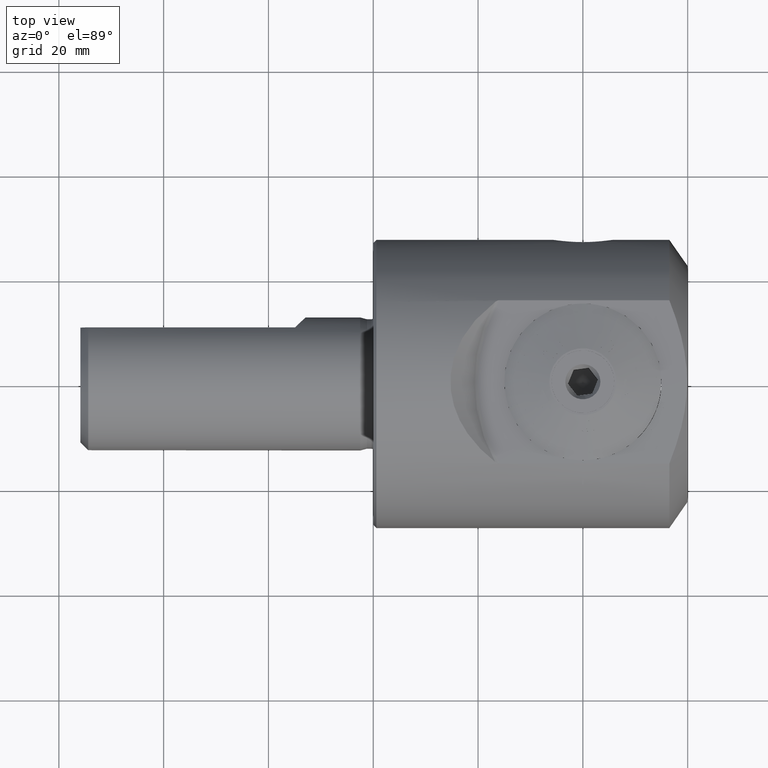
[diagram: clean part render]
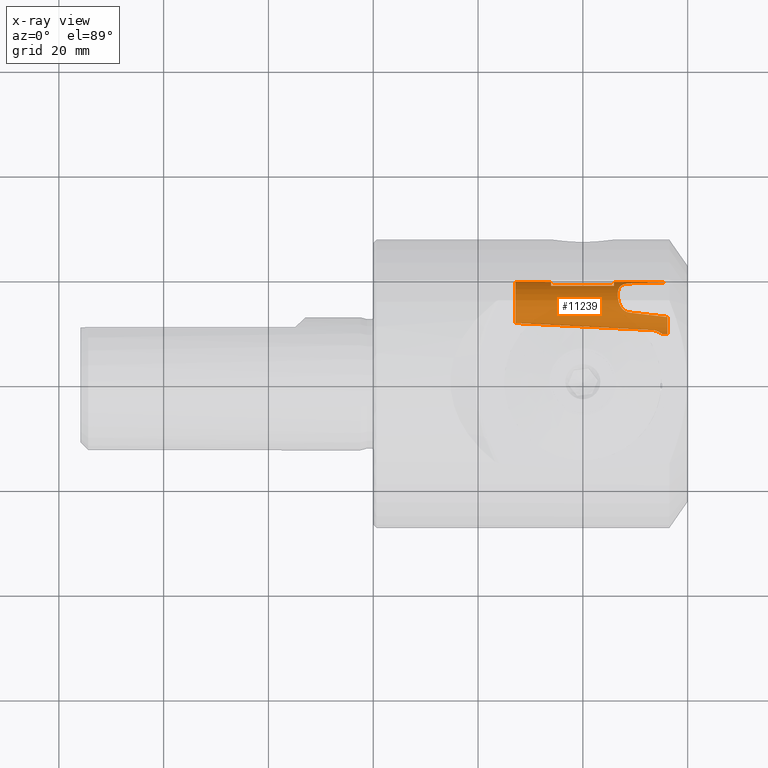
[diagram: x-ray — body ghosted, one internal face saturated and labeled with its STEP entity id]
A machine part, top view, then the same camera in x-ray: the body is ghosted and one INTERNAL B-rep face — a face not visible from any outside direction — is saturated and labeled: STEP entity #11239.
In plain terms, the highlighted cylindrical surface (bore or boss wall) has radius 4.975 mm, axis along (1, 0, -0).
Its self-contained STEP definition (entity closure, byte-faithful):
#60 = CARTESIAN_POINT ( 'NONE',  ( -23.75616264005797600, 0.9711936959612594800, -4.879283533975561600 ) ) ;
#329 = CARTESIAN_POINT ( 'NONE',  ( -23.75616264005797600, 0.9711936959612560400, 4.879283533975560700 ) ) ;
#379 = AXIS2_PLACEMENT_3D ( 'NONE', #25001, #12374, #23057 ) ;
#413 = CARTESIAN_POINT ( 'NONE',  ( -28.04702041557785500, 4.175981429081590000, 2.704034782314310700 ) ) ;
#569 = CARTESIAN_POINT ( 'NONE',  ( -23.75616264005797600, 0.9711936959612594800, -4.879283533975561600 ) ) ;
#603 = CARTESIAN_POINT ( 'NONE',  ( -21.81273115930526200, -0.7140002617331654400, 4.926844232489567200 ) ) ;
#773 = CARTESIAN_POINT ( 'NONE',  ( -37.35767266981326900, -4.174999999999990900, 2.705549851693736000 ) ) ;
#927 = ORIENTED_EDGE ( 'NONE', *, *, #6784, .T. ) ;
#1032 = CIRCLE ( 'NONE', #25133, 4.974999999999991700 ) ;
#1157 = CARTESIAN_POINT ( 'NONE',  ( -28.35949422831775400, 4.204222738295940500, 2.660504903129094200 ) ) ;
#1252 = CARTESIAN_POINT ( 'NONE',  ( -29.17404201039428100, 4.442811831501246400, -2.241886829458144000 ) ) ;
#1380 = CARTESIAN_POINT ( 'NONE',  ( -22.85343681962985600, -4.596819367566275200, -1.906257305762205600 ) ) ;
#1474 = CARTESIAN_POINT ( 'NONE',  ( -22.41101902823778900, -4.441022011835181100, -2.247365920600072500 ) ) ;
#1727 = CARTESIAN_POINT ( 'NONE',  ( -31.00000000000000000, 1.812363584637119100, -4.633137515451188000 ) ) ;
#1919 = CARTESIAN_POINT ( 'NONE',  ( -22.85096820679456900, 0.6458913709162358300, -4.934303833800350400 ) ) ;
#2008 = CARTESIAN_POINT ( 'NONE',  ( -21.54349514667245900, -3.122258275151887900, -3.878029846838730000 ) ) ;
#2212 = CIRCLE ( 'NONE', #13538, 4.974999999999993400 ) ;
#2259 = CARTESIAN_POINT ( 'NONE',  ( -23.75616264005797600, -4.711180340670591000, -1.598563354289988600 ) ) ;
#2377 = CARTESIAN_POINT ( 'NONE',  ( -22.41101902823778900, -4.441022011835181100, 2.247365920600072500 ) ) ;
#2414 = AXIS2_PLACEMENT_3D ( 'NONE', #13935, #7437, #9243 ) ;
#2478 = CARTESIAN_POINT ( 'NONE',  ( -28.04702041557785500, 4.175981429081590000, -2.704034782314313400 ) ) ;
#2516 = EDGE_CURVE ( 'NONE', #25354, #7135, #21500, .T. ) ;
#2656 = CARTESIAN_POINT ( 'NONE',  ( -21.69239270141726900, -3.674352406732378300, 3.359062020855605000 ) ) ;
#2756 = ORIENTED_EDGE ( 'NONE', *, *, #26556, .T. ) ;
#2814 = ORIENTED_EDGE ( 'NONE', *, *, #15830, .T. ) ;
#3128 = CARTESIAN_POINT ( 'NONE',  ( -31.00000000000000000, -4.918596579926013800, -0.7470158525359751300 ) ) ;
#3315 = CARTESIAN_POINT ( 'NONE',  ( -25.96393487807307900, -4.805297045443680300, -1.321188817919111400 ) ) ;
#3322 = CARTESIAN_POINT ( 'NONE',  ( -29.95718939767529700, 4.937687269155614600, 0.6280495243557379100 ) ) ;
#3361 =( BOUNDED_CURVE ( )  B_SPLINE_CURVE ( 3, ( #3128, #9473, #3315, #26899 ),
 .UNSPECIFIED., .F., .T. ) 
 B_SPLINE_CURVE_WITH_KNOTS ( ( 4, 4 ),
 ( 2.245119078828732300, 2.421517405369339600 ),
 .UNSPECIFIED. ) 
 CURVE ( )  GEOMETRIC_REPRESENTATION_ITEM ( )  RATIONAL_B_SPLINE_CURVE ( ( 1.000000000000000000, 0.9974086497158403100, 0.9974086497158403100, 1.000000000000000000 ) ) 
 REPRESENTATION_ITEM ( '' )  );
#3610 = ORIENTED_EDGE ( 'NONE', *, *, #26317, .T. ) ;
#3794 = ORIENTED_EDGE ( 'NONE', *, *, #10431, .F. ) ;
#4018 = CARTESIAN_POINT ( 'NONE',  ( -21.88634546307127900, -0.5351768258960275500, -4.949127718726362700 ) ) ;
#4160 = CIRCLE ( 'NONE', #25289, 4.974999999999995200 ) ;
#4382 = CARTESIAN_POINT ( 'NONE',  ( -21.64535866357411500, -1.251328301372853800, -4.818749861947051900 ) ) ;
#4435 = CARTESIAN_POINT ( 'NONE',  ( -8.800000000000002500, -4.174999999999990900, 2.705549851693735500 ) ) ;
#4458 = CARTESIAN_POINT ( 'NONE',  ( -8.800000000000002500, -4.174999999999990900, -2.705549851693735500 ) ) ;
#4552 = CARTESIAN_POINT ( 'NONE',  ( -21.88663810129824900, -4.018931799033475200, 2.937452126306506500 ) ) ;
#4680 = ORIENTED_EDGE ( 'NONE', *, *, #26388, .F. ) ;
#4756 = CARTESIAN_POINT ( 'NONE',  ( -23.02246505020508500, -4.633603653841064800, 1.812741651946556000 ) ) ;
#4849 = CARTESIAN_POINT ( 'NONE',  ( -21.54349514667245900, -3.122258275151887900, 3.878029846838730000 ) ) ;
#5036 = ORIENTED_EDGE ( 'NONE', *, *, #18693, .T. ) ;
#5497 = CARTESIAN_POINT ( 'NONE',  ( -30.00006131395096900, 4.975054249201298800, 0.1567646807689248600 ) ) ;
#5563 = VERTEX_POINT ( 'NONE', #15251 ) ;
#5576 = CARTESIAN_POINT ( 'NONE',  ( -23.75616264005797600, 0.9711936959612560400, 4.879283533975560700 ) ) ;
#5586 = CARTESIAN_POINT ( 'NONE',  ( -28.79815339571129900, 4.303275072072571200, -2.498159080227027500 ) ) ;
#5657 = EDGE_CURVE ( 'NONE', #5563, #19181, #15980, .T. ) ;
#5770 = CARTESIAN_POINT ( 'NONE',  ( -28.04702041557785500, 4.175981429081590000, -2.704034782314313400 ) ) ;
#5817 = CARTESIAN_POINT ( 'NONE',  ( -22.06561509288833300, -4.212912498745185800, -2.651755282363300400 ) ) ;
#5892 = DIRECTION ( 'NONE',  ( 0.0000000000000000000, 5.310751821647804000E-032, -1.000000000000000000 ) ) ;
#6148 = ORIENTED_EDGE ( 'NONE', *, *, #5657, .T. ) ;
#6259 = CARTESIAN_POINT ( 'NONE',  ( -21.57095747875063200, -1.612454405559408800, 4.710219054335314400 ) ) ;
#6285 = CARTESIAN_POINT ( 'NONE',  ( -21.50011477217534100, -2.317699780142878900, -4.406338544676592600 ) ) ;
#6299 = DIRECTION ( 'NONE',  ( -1.000000000000000000, 4.390622260158178900E-033, -3.574525976782709700E-031 ) ) ;
#6323 = EDGE_LOOP ( 'NONE', ( #2814, #9338, #25416, #6148 ) ) ;
#6386 = ORIENTED_EDGE ( 'NONE', *, *, #11014, .F. ) ;
#6543 = CARTESIAN_POINT ( 'NONE',  ( -20.80000000000000100, -4.174999999999990900, 2.705549851693734600 ) ) ;
#6562 = CARTESIAN_POINT ( 'NONE',  ( -21.69264845615322200, -1.071235467195228200, -4.861691582031276900 ) ) ;
#6622 = ORIENTED_EDGE ( 'NONE', *, *, #15405, .T. ) ;
#6722 =( BOUNDED_CURVE ( )  B_SPLINE_CURVE ( 3, ( #7608, #20913, #14560, #1727 ),
 .UNSPECIFIED., .F., .F. ) 
 B_SPLINE_CURVE_WITH_KNOTS ( ( 4, 4 ),
 ( 3.861667901810247500, 4.038066228350853500 ),
 .UNSPECIFIED. ) 
 CURVE ( )  GEOMETRIC_REPRESENTATION_ITEM ( )  RATIONAL_B_SPLINE_CURVE ( ( 1.000000000000000000, 0.9974086497158403100, 0.9974086497158403100, 1.000000000000000000 ) ) 
 REPRESENTATION_ITEM ( '' )  );
#6735 = CARTESIAN_POINT ( 'NONE',  ( -21.50837444099488500, -2.813558591817865800, 4.107493186864018300 ) ) ;
#6784 = EDGE_CURVE ( 'NONE', #25354, #16844, #3361, .T. ) ;
#6836 = CARTESIAN_POINT ( 'NONE',  ( -22.06466569340828300, -0.1916879100465490600, 4.974287401868105400 ) ) ;
#6927 = CARTESIAN_POINT ( 'NONE',  ( -23.37745697600762500, -4.686431972548828800, 1.671427678442383200 ) ) ;
#7135 = VERTEX_POINT ( 'NONE', #25460 ) ;
#7233 = DIRECTION ( 'NONE',  ( -1.000000000000000000, 4.390622260158179500E-033, -3.574525976782709700E-031 ) ) ;
#7437 = DIRECTION ( 'NONE',  ( -1.000000000000000000, 4.390622260158178200E-033, -3.574525976782709700E-031 ) ) ;
#7503 = B_SPLINE_CURVE_WITH_KNOTS ( 'NONE', 3,
 ( #9857, #14079, #1157, #27177, #18354, #20794, #16235, #20518, #7682, #22888, #12015, #25101, #3322, #22615, #5497, #24833, #16509, #26987, #18536, #14165, #14351, #1252, #7869, #5586, #16325, #10049, #20611, #5770 ),
 .UNSPECIFIED., .F., .F.,
 ( 4, 2, 2, 2, 2, 2, 2, 2, 2, 2, 2, 2, 2, 4 ),
 ( 0.0000000000000000000, 0.0004717440663715149600, 0.0009434881327430299200, 0.001415232199114544700, 0.001886976265486059800, 0.002830464398229090700, 0.003302208464600606300, 0.003773952530972121400, 0.004717440663715151200, 0.005660928796458180600, 0.006132672862829696200, 0.006604416929201210900, 0.007076160995572726400, 0.007547905061944241100 ),
 .UNSPECIFIED. ) ;
#7534 = EDGE_CURVE ( 'NONE', #19755, #5563, #20768, .T. ) ;
#7581 = CARTESIAN_POINT ( 'NONE',  ( -23.75616264005797600, -4.711180340670591000, 1.598563354289989100 ) ) ;
#7608 = CARTESIAN_POINT ( 'NONE',  ( -23.75616264005797600, 0.9711936959612594800, -4.879283533975561600 ) ) ;
#7682 = CARTESIAN_POINT ( 'NONE',  ( -29.47367893246690000, 4.595344360789214400, 1.911089644568778200 ) ) ;
#7711 = FACE_BOUND ( 'NONE', #6323, .T. ) ;
#7869 = CARTESIAN_POINT ( 'NONE',  ( -29.05475172217763100, 4.392112146467247200, -2.338445216141870700 ) ) ;
#7945 = CARTESIAN_POINT ( 'NONE',  ( -31.00000000000000000, -4.918596579926013800, 0.7470158525359751300 ) ) ;
#8295 = CARTESIAN_POINT ( 'NONE',  ( -23.75616264005797600, -4.711180340670591000, -1.598563354289988600 ) ) ;
#8388 = CARTESIAN_POINT ( 'NONE',  ( -23.56226435454252100, 0.9459639651452662600, -4.884305368707790900 ) ) ;
#8451 = CARTESIAN_POINT ( 'NONE',  ( -21.50865810232666300, -2.146443158344295100, 4.492229735969411700 ) ) ;
#8818 = CARTESIAN_POINT ( 'NONE',  ( -12.39955657635416000, 3.355932597856295300, 3.731578715431219400 ) ) ;
#8906 = CARTESIAN_POINT ( 'NONE',  ( -22.85096820679456900, 0.6458913709162358300, 4.934303833800350400 ) ) ;
#9014 =( BOUNDED_CURVE ( )  B_SPLINE_CURVE ( 3, ( #5576, #20602, #9757, #26803 ),
 .UNSPECIFIED., .F., .T. ) 
 B_SPLINE_CURVE_WITH_KNOTS ( ( 4, 4 ),
 ( 3.861667901810247100, 4.038066228350853500 ),
 .UNSPECIFIED. ) 
 CURVE ( )  GEOMETRIC_REPRESENTATION_ITEM ( )  RATIONAL_B_SPLINE_CURVE ( ( 1.000000000000000000, 0.9974086497158403100, 0.9974086497158403100, 1.000000000000000000 ) ) 
 REPRESENTATION_ITEM ( '' )  );
#9107 = CARTESIAN_POINT ( 'NONE',  ( -21.81361238804723300, -3.911374035951867600, 3.079824089083036800 ) ) ;
#9210 = CARTESIAN_POINT ( 'NONE',  ( -21.49988748655810500, -2.650683389746759200, 4.214431065813943000 ) ) ;
#9243 = DIRECTION ( 'NONE',  ( 0.0000000000000000000, -5.310751821647804000E-032, 1.000000000000000000 ) ) ;
#9338 = ORIENTED_EDGE ( 'NONE', *, *, #19584, .T. ) ;
#9385 = VECTOR ( 'NONE', #7233, 1000.000000000000000 ) ;
#9473 = CARTESIAN_POINT ( 'NONE',  ( -28.38482069453549500, -4.874615420051892300, -1.036602187020927000 ) ) ;
#9545 = DIRECTION ( 'NONE',  ( 1.000000000000000000, -4.390622260158179500E-033, 3.574525976782709700E-031 ) ) ;
#9757 = CARTESIAN_POINT ( 'NONE',  ( -28.38482069453547800, 1.539583882447266100, 4.739841880954768000 ) ) ;
#9857 = CARTESIAN_POINT ( 'NONE',  ( -28.04702041557785500, 4.175981429081590000, 2.704034782314310700 ) ) ;
#9885 = VERTEX_POINT ( 'NONE', #24411 ) ;
#10049 = CARTESIAN_POINT ( 'NONE',  ( -28.36232358724183600, 4.204578289626972800, -2.659964332718100600 ) ) ;
#10124 = CARTESIAN_POINT ( 'NONE',  ( -28.38482069453549500, -4.874615420051892300, 1.036602187020927000 ) ) ;
#10344 = CARTESIAN_POINT ( 'NONE',  ( -8.800000000000002500, 0.0000000000000000000, -3.037114485100895500E-030 ) ) ;
#10431 = EDGE_CURVE ( 'NONE', #26157, #14730, #1032, .T. ) ;
#10448 = CARTESIAN_POINT ( 'NONE',  ( -23.02246505020508500, -4.633603653841064800, -1.812741651946556000 ) ) ;
#10768 = EDGE_CURVE ( 'NONE', #26202, #25310, #23970, .T. ) ;
#10824 = CARTESIAN_POINT ( 'NONE',  ( -23.37594249840031300, 0.8954007444527973800, -4.894355982542507800 ) ) ;
#11014 = EDGE_CURVE ( 'NONE', #27033, #26157, #9014, .T. ) ;
#11017 = CARTESIAN_POINT ( 'NONE',  ( -12.39955657635414400, 3.355932597856294400, -3.731578715431219900 ) ) ;
#11108 = CARTESIAN_POINT ( 'NONE',  ( -23.01788439896217000, 0.7446776661578703400, 4.919544506409301300 ) ) ;
#11222 = VERTEX_POINT ( 'NONE', #20689 ) ;
#11239 = ADVANCED_FACE ( 'NONE', ( #7711, #27156, #25802 ), #19399, .T. ) ;
#11383 = CARTESIAN_POINT ( 'NONE',  ( -23.75616264005797600, -4.711180340670591000, 1.598563354289989100 ) ) ;
#11430 = CARTESIAN_POINT ( 'NONE',  ( -31.00000000000000000, 1.812363584637119100, -4.633137515451188000 ) ) ;
#12015 = CARTESIAN_POINT ( 'NONE',  ( -29.82403536976303100, 4.828477307129699800, 1.237775062639390900 ) ) ;
#12231 = CARTESIAN_POINT ( 'NONE',  ( -23.37745697600762500, -4.686431972548828800, -1.671427678442383200 ) ) ;
#12374 = DIRECTION ( 'NONE',  ( -1.000000000000000000, 4.390622260158178900E-033, -3.574525976782709700E-031 ) ) ;
#12419 = ORIENTED_EDGE ( 'NONE', *, *, #12587, .F. ) ;
#12587 = EDGE_CURVE ( 'NONE', #7135, #25011, #24765, .T. ) ;
#12620 = CARTESIAN_POINT ( 'NONE',  ( -21.50837444099488500, -2.813558591817865800, -4.107493186864018300 ) ) ;
#12743 = DIRECTION ( 'NONE',  ( -1.000000000000000000, 4.390622260158178900E-033, -3.574525976782709700E-031 ) ) ;
#12777 = CARTESIAN_POINT ( 'NONE',  ( -22.16946527986219800, -4.296870477301586000, 2.512017952159833800 ) ) ;
#12800 = CARTESIAN_POINT ( 'NONE',  ( -21.49988748655810500, -2.650683389746759200, -4.214431065813943000 ) ) ;
#12883 = CARTESIAN_POINT ( 'NONE',  ( -22.06466569340828300, -0.1916879100465490600, -4.974287401868105400 ) ) ;
#12972 = CARTESIAN_POINT ( 'NONE',  ( -22.54837089765234400, 0.4113877607279218800, -4.959363880338300700 ) ) ;
#13240 = CARTESIAN_POINT ( 'NONE',  ( -23.56226435454252100, 0.9459639651452662600, 4.884305368707790900 ) ) ;
#13244 = EDGE_LOOP ( 'NONE', ( #6622, #27100, #2756, #5036 ) ) ;
#13521 = CARTESIAN_POINT ( 'NONE',  ( -21.64535866357411500, -1.251328301372853800, 4.818749861947051900 ) ) ;
#13538 = AXIS2_PLACEMENT_3D ( 'NONE', #10344, #14760, #5892 ) ;
#13630 =( BOUNDED_CURVE ( )  B_SPLINE_CURVE ( 3, ( #2478, #15905, #11017, #15314 ),
 .UNSPECIFIED., .F., .F. ) 
 B_SPLINE_CURVE_WITH_KNOTS ( ( 4, 4 ),
 ( 0.5746303896222408900, 0.9703533450840773300 ),
 .UNSPECIFIED. ) 
 CURVE ( )  GEOMETRIC_REPRESENTATION_ITEM ( )  RATIONAL_B_SPLINE_CURVE ( ( 1.000000000000000000, 0.9869927968320930700, 0.9869927968320930700, 1.000000000000000000 ) ) 
 REPRESENTATION_ITEM ( '' )  );
#13635 = B_SPLINE_CURVE_WITH_KNOTS ( 'NONE', 3,
 ( #11383, #15497, #6927, #4756, #19768, #15594, #2377, #12777, #21947, #4552, #9107, #2656, #19569, #24108, #4849, #6735, #9210, #24200, #8451, #26335, #6259, #13521, #15693, #603, #16981, #6836, #23435, #24012, #21761, #8906, #11108, #26055, #13240, #329 ),
 .UNSPECIFIED., .F., .F.,
 ( 4, 2, 2, 2, 2, 2, 2, 2, 2, 2, 2, 2, 2, 2, 2, 2, 4 ),
 ( 2.168404344971008900E-019, 0.0005761594176274573800, 0.001152318835254914500, 0.001728478252882371600, 0.002304637670509829100, 0.002880797088137285700, 0.003456956505764743200, 0.004033115923392199800, 0.004609275341019658200, 0.005185434758647115700, 0.005761594176274573200, 0.006337753593902029800, 0.006913913011529486400, 0.007490072429156943900, 0.008066231846784401400, 0.008642391264411858000, 0.009218550682039316400 ),
 .UNSPECIFIED. ) ;
#13935 = CARTESIAN_POINT ( 'NONE',  ( -20.80000000000000100, 0.0000000000000000000, -7.178634237511205700E-030 ) ) ;
#14079 = CARTESIAN_POINT ( 'NONE',  ( -28.20634452762394800, 4.184331251980168500, 2.691139716914769100 ) ) ;
#14165 = CARTESIAN_POINT ( 'NONE',  ( -29.47448142515511500, 4.595795942965499300, -1.910047569937226600 ) ) ;
#14351 = CARTESIAN_POINT ( 'NONE',  ( -29.38302137818232400, 4.544396302010352600, -2.028076866516653100 ) ) ;
#14560 = CARTESIAN_POINT ( 'NONE',  ( -28.38482069453548100, 1.539583882447267000, -4.739841880954767100 ) ) ;
#14722 = CARTESIAN_POINT ( 'NONE',  ( -28.04702041557785500, 4.175981429081590000, 2.704034782314310700 ) ) ;
#14730 = VERTEX_POINT ( 'NONE', #11430 ) ;
#14760 = DIRECTION ( 'NONE',  ( 1.000000000000000000, -4.390622260158178200E-033, 3.574525976782709700E-031 ) ) ;
#14892 = DIRECTION ( 'NONE',  ( 0.0000000000000000000, -5.310751821647804000E-032, 1.000000000000000000 ) ) ;
#14956 = CARTESIAN_POINT ( 'NONE',  ( -21.57095747875063200, -1.612454405559408800, -4.710219054335314400 ) ) ;
#15251 = CARTESIAN_POINT ( 'NONE',  ( -20.80000000000000100, -4.174999999999990900, -2.705549851693737300 ) ) ;
#15314 = CARTESIAN_POINT ( 'NONE',  ( -2.000000000000001800, 2.810914932161299200, -4.104799903058927100 ) ) ;
#15405 = EDGE_CURVE ( 'NONE', #11222, #26202, #4160, .T. ) ;
#15497 = CARTESIAN_POINT ( 'NONE',  ( -23.56270199902303400, -4.702933168374472400, 1.622868875796738000 ) ) ;
#15594 = CARTESIAN_POINT ( 'NONE',  ( -22.54979438238288100, -4.501214995267716300, 2.122175482890432900 ) ) ;
#15597 = ORIENTED_EDGE ( 'NONE', *, *, #18575, .T. ) ;
#15693 = CARTESIAN_POINT ( 'NONE',  ( -21.69264845615322200, -1.071235467195228200, 4.861691582031276900 ) ) ;
#15830 = EDGE_CURVE ( 'NONE', #19181, #22337, #17594, .T. ) ;
#15905 = CARTESIAN_POINT ( 'NONE',  ( -21.19631797764631600, 3.816951327780728800, -3.258503624697498300 ) ) ;
#15980 = CIRCLE ( 'NONE', #2414, 4.974999999999993400 ) ;
#16235 = CARTESIAN_POINT ( 'NONE',  ( -29.17164942543914900, 4.441722883880334600, 2.244075449932736900 ) ) ;
#16325 = CARTESIAN_POINT ( 'NONE',  ( -28.66015839989204400, 4.264552507114259200, -2.562709651716406500 ) ) ;
#16438 = CARTESIAN_POINT ( 'NONE',  ( -31.00000000000000000, 1.812363584637119100, 4.633137515451188000 ) ) ;
#16509 = CARTESIAN_POINT ( 'NONE',  ( -29.96732806897202300, 4.944721320599419400, -0.6297692231712570500 ) ) ;
#16559 = CARTESIAN_POINT ( 'NONE',  ( -22.16946527986219800, -4.296870477301586000, -2.512017952159833800 ) ) ;
#16844 = VERTEX_POINT ( 'NONE', #2259 ) ;
#16929 = CARTESIAN_POINT ( 'NONE',  ( -23.75616264005797600, 0.9711936959612560400, 4.879283533975560700 ) ) ;
#16981 = CARTESIAN_POINT ( 'NONE',  ( -21.88634546307127900, -0.5351768258960275500, 4.949127718726362700 ) ) ;
#17023 = DIRECTION ( 'NONE',  ( 0.0000000000000000000, -5.310751821647804000E-032, 1.000000000000000000 ) ) ;
#17099 = CARTESIAN_POINT ( 'NONE',  ( -21.54388836502390700, -1.794531282816777000, -4.644028822878128800 ) ) ;
#17173 = CARTESIAN_POINT ( 'NONE',  ( -2.000000000000001800, 2.810914932161299200, 4.104799903058927100 ) ) ;
#17185 = CARTESIAN_POINT ( 'NONE',  ( -22.16794275475827200, -0.02922723313749910100, -4.977202831779648000 ) ) ;
#17200 = CARTESIAN_POINT ( 'NONE',  ( -31.00000000000000000, 0.0000000000000000000, -1.069892602705997100E-029 ) ) ;
#17594 = LINE ( 'NONE', #773, #21291 ) ;
#18106 = CARTESIAN_POINT ( 'NONE',  ( -37.35767266981326900, -4.174999999999990900, -2.705549851693736900 ) ) ;
#18354 = CARTESIAN_POINT ( 'NONE',  ( -28.79647290148241000, 4.302765101750392100, 2.499035341793486100 ) ) ;
#18536 = CARTESIAN_POINT ( 'NONE',  ( -29.71543790344157500, 4.743850648725676900, -1.523973194576850000 ) ) ;
#18575 = EDGE_CURVE ( 'NONE', #16844, #20357, #21808, .T. ) ;
#18693 = EDGE_CURVE ( 'NONE', #9885, #11222, #13630, .T. ) ;
#18764 = CARTESIAN_POINT ( 'NONE',  ( -21.69239270141726900, -3.674352406732378300, -3.359062020855605000 ) ) ;
#19157 = CARTESIAN_POINT ( 'NONE',  ( -31.00000000000000000, 0.0000000000000000000, -1.069892602705997100E-029 ) ) ;
#19181 = VERTEX_POINT ( 'NONE', #6543 ) ;
#19399 = CYLINDRICAL_SURFACE ( 'NONE', #379, 4.974999999999993400 ) ;
#19468 = CARTESIAN_POINT ( 'NONE',  ( -21.19631797764632400, 3.816951327780729700, 3.258503624697497900 ) ) ;
#19549 = DIRECTION ( 'NONE',  ( 0.0000000000000000000, -5.310751821647804000E-032, 1.000000000000000000 ) ) ;
#19569 = CARTESIAN_POINT ( 'NONE',  ( -21.64416272785988200, -3.544015054509953400, 3.496621040298840900 ) ) ;
#19584 = EDGE_CURVE ( 'NONE', #22337, #19755, #2212, .T. ) ;
#19716 = ORIENTED_EDGE ( 'NONE', *, *, #2516, .F. ) ;
#19755 = VERTEX_POINT ( 'NONE', #4458 ) ;
#19768 = CARTESIAN_POINT ( 'NONE',  ( -22.85343681962985600, -4.596819367566275200, 1.906257305762205600 ) ) ;
#20357 = VERTEX_POINT ( 'NONE', #569 ) ;
#20419 = CARTESIAN_POINT ( 'NONE',  ( -23.75616264005797600, -4.711180340670591000, 1.598563354289989100 ) ) ;
#20518 = CARTESIAN_POINT ( 'NONE',  ( -29.38216077370882600, 4.543905016721212500, 2.029212655488051200 ) ) ;
#20602 = CARTESIAN_POINT ( 'NONE',  ( -25.96393487807306900, 1.258465443207907400, 4.822103723044098600 ) ) ;
#20611 = CARTESIAN_POINT ( 'NONE',  ( -28.20654537062320300, 4.184341777715742300, -2.691123461474353600 ) ) ;
#20689 = CARTESIAN_POINT ( 'NONE',  ( -2.000000000000001800, 2.810914932161299200, -4.104799903058927100 ) ) ;
#20768 = LINE ( 'NONE', #18106, #9385 ) ;
#20794 = CARTESIAN_POINT ( 'NONE',  ( -29.05342946546658600, 4.391583367065903700, 2.339435977000451100 ) ) ;
#20842 = CARTESIAN_POINT ( 'NONE',  ( -21.88663810129824900, -4.018931799033475200, -2.937452126306506500 ) ) ;
#20913 = CARTESIAN_POINT ( 'NONE',  ( -25.96393487807309000, 1.258465443207909000, -4.822103723044097700 ) ) ;
#21291 = VECTOR ( 'NONE', #9545, 1000.000000000000000 ) ;
#21500 = CIRCLE ( 'NONE', #21944, 4.974999999999991700 ) ;
#21555 = CARTESIAN_POINT ( 'NONE',  ( -2.000000000000001800, 0.0000000000000000000, -6.902532920683852400E-031 ) ) ;
#21587 = CARTESIAN_POINT ( 'NONE',  ( -21.50865810232666300, -2.146443158344295100, -4.492229735969411700 ) ) ;
#21761 = CARTESIAN_POINT ( 'NONE',  ( -22.54837089765234400, 0.4113877607279218800, 4.959363880338300700 ) ) ;
#21808 = B_SPLINE_CURVE_WITH_KNOTS ( 'NONE', 3,
 ( #8295, #23281, #12231, #10448, #1380, #27222, #1474, #16559, #5817, #20842, #25149, #18764, #23549, #25604, #2008, #12620, #12800, #6285, #21587, #17099, #14956, #4382, #6562, #25793, #4018, #12883, #17185, #27662, #12972, #1919, #23459, #10824, #8388, #60 ),
 .UNSPECIFIED., .F., .F.,
 ( 4, 2, 2, 2, 2, 2, 2, 2, 2, 2, 2, 2, 2, 2, 2, 2, 4 ),
 ( 2.168404344971008900E-019, 0.0005761594176274573800, 0.001152318835254914500, 0.001728478252882371600, 0.002304637670509829100, 0.002880797088137285700, 0.003456956505764743200, 0.004033115923392199800, 0.004609275341019658200, 0.005185434758647115700, 0.005761594176274573200, 0.006337753593902029800, 0.006913913011529486400, 0.007490072429156943900, 0.008066231846784401400, 0.008642391264411858000, 0.009218550682039316400 ),
 .UNSPECIFIED. ) ;
#21944 = AXIS2_PLACEMENT_3D ( 'NONE', #19157, #12743, #14892 ) ;
#21947 = CARTESIAN_POINT ( 'NONE',  ( -22.06561509288833300, -4.212912498745185800, 2.651755282363300400 ) ) ;
#22337 = VERTEX_POINT ( 'NONE', #4435 ) ;
#22615 = CARTESIAN_POINT ( 'NONE',  ( -29.99153925879265600, 4.967433313121946800, 0.3159241249275446800 ) ) ;
#22888 = CARTESIAN_POINT ( 'NONE',  ( -29.71398461062228000, 4.742875454191275400, 1.526784569378097700 ) ) ;
#23057 = DIRECTION ( 'NONE',  ( 0.0000000000000000000, -5.310751821647804000E-032, 1.000000000000000000 ) ) ;
#23281 = CARTESIAN_POINT ( 'NONE',  ( -23.56270199902303400, -4.702933168374472400, -1.622868875796738000 ) ) ;
#23435 = CARTESIAN_POINT ( 'NONE',  ( -22.16794275475827200, -0.02922723313749910100, 4.977202831779648000 ) ) ;
#23459 = CARTESIAN_POINT ( 'NONE',  ( -23.01788439896217000, 0.7446776661578703400, -4.919544506409301300 ) ) ;
#23549 = CARTESIAN_POINT ( 'NONE',  ( -21.64416272785988200, -3.544015054509953400, -3.496621040298840900 ) ) ;
#23970 =( BOUNDED_CURVE ( )  B_SPLINE_CURVE ( 3, ( #17173, #8818, #19468, #413 ),
 .UNSPECIFIED., .F., .F. ) 
 B_SPLINE_CURVE_WITH_KNOTS ( ( 4, 4 ),
 ( 5.312831962095509100, 5.708554917557346000 ),
 .UNSPECIFIED. ) 
 CURVE ( )  GEOMETRIC_REPRESENTATION_ITEM ( )  RATIONAL_B_SPLINE_CURVE ( ( 1.000000000000000000, 0.9869927968320928400, 0.9869927968320928400, 1.000000000000000000 ) ) 
 REPRESENTATION_ITEM ( '' )  );
#24012 = CARTESIAN_POINT ( 'NONE',  ( -22.40941690807973800, 0.2725252563761057000, 4.969822154209278900 ) ) ;
#24108 = CARTESIAN_POINT ( 'NONE',  ( -21.56995687147006900, -3.268289164981308400, 3.755620766280789400 ) ) ;
#24200 = CARTESIAN_POINT ( 'NONE',  ( -21.50011477217534100, -2.317699780142878900, 4.406338544676592600 ) ) ;
#24411 = CARTESIAN_POINT ( 'NONE',  ( -28.04702041557785500, 4.175981429081590000, -2.704034782314313400 ) ) ;
#24765 =( BOUNDED_CURVE ( )  B_SPLINE_CURVE ( 3, ( #7945, #10124, #25085, #20419 ),
 .UNSPECIFIED., .F., .T. ) 
 B_SPLINE_CURVE_WITH_KNOTS ( ( 4, 4 ),
 ( 2.245119078828732300, 2.421517405369339600 ),
 .UNSPECIFIED. ) 
 CURVE ( )  GEOMETRIC_REPRESENTATION_ITEM ( )  RATIONAL_B_SPLINE_CURVE ( ( 1.000000000000000000, 0.9974086497158403100, 0.9974086497158403100, 1.000000000000000000 ) ) 
 REPRESENTATION_ITEM ( '' )  );
#24833 = CARTESIAN_POINT ( 'NONE',  ( -29.99987637299623000, 4.974890617614504700, -0.3186661784710045900 ) ) ;
#25001 = CARTESIAN_POINT ( 'NONE',  ( -37.35767266981326900, 0.0000000000000000000, -1.366350024993077200E-029 ) ) ;
#25011 = VERTEX_POINT ( 'NONE', #7581 ) ;
#25085 = CARTESIAN_POINT ( 'NONE',  ( -25.96393487807307900, -4.805297045443680300, 1.321188817919111400 ) ) ;
#25101 = CARTESIAN_POINT ( 'NONE',  ( -29.93139184101576000, 4.915572843973020400, 0.7821012839680932000 ) ) ;
#25133 = AXIS2_PLACEMENT_3D ( 'NONE', #17200, #6299, #17023 ) ;
#25149 = CARTESIAN_POINT ( 'NONE',  ( -21.81361238804723300, -3.911374035951867600, -3.079824089083036800 ) ) ;
#25289 = AXIS2_PLACEMENT_3D ( 'NONE', #21555, #25663, #19549 ) ;
#25310 = VERTEX_POINT ( 'NONE', #14722 ) ;
#25354 = VERTEX_POINT ( 'NONE', #26495 ) ;
#25416 = ORIENTED_EDGE ( 'NONE', *, *, #7534, .T. ) ;
#25460 = CARTESIAN_POINT ( 'NONE',  ( -31.00000000000000000, -4.918596579926013800, 0.7470158525359751300 ) ) ;
#25604 = CARTESIAN_POINT ( 'NONE',  ( -21.56995687147006900, -3.268289164981308400, -3.755620766280789400 ) ) ;
#25663 = DIRECTION ( 'NONE',  ( -1.000000000000000000, 4.390622260158178900E-033, -3.574525976782709700E-031 ) ) ;
#25793 = CARTESIAN_POINT ( 'NONE',  ( -21.81273115930526200, -0.7140002617331654400, -4.926844232489567200 ) ) ;
#25802 = FACE_OUTER_BOUND ( 'NONE', #27486, .T. ) ;
#26055 = CARTESIAN_POINT ( 'NONE',  ( -23.37594249840031300, 0.8954007444527973800, 4.894355982542507800 ) ) ;
#26157 = VERTEX_POINT ( 'NONE', #16438 ) ;
#26202 = VERTEX_POINT ( 'NONE', #26837 ) ;
#26317 = EDGE_CURVE ( 'NONE', #20357, #14730, #6722, .T. ) ;
#26335 = CARTESIAN_POINT ( 'NONE',  ( -21.54388836502390700, -1.794531282816777000, 4.644028822878128800 ) ) ;
#26388 = EDGE_CURVE ( 'NONE', #25011, #27033, #13635, .T. ) ;
#26495 = CARTESIAN_POINT ( 'NONE',  ( -31.00000000000000000, -4.918596579926013800, -0.7470158525359751300 ) ) ;
#26556 = EDGE_CURVE ( 'NONE', #25310, #9885, #7503, .T. ) ;
#26803 = CARTESIAN_POINT ( 'NONE',  ( -31.00000000000000000, 1.812363584637119100, 4.633137515451188000 ) ) ;
#26837 = CARTESIAN_POINT ( 'NONE',  ( -2.000000000000001800, 2.810914932161299200, 4.104799903058927100 ) ) ;
#26899 = CARTESIAN_POINT ( 'NONE',  ( -23.75616264005797600, -4.711180340670591000, -1.598563354289988600 ) ) ;
#26987 = CARTESIAN_POINT ( 'NONE',  ( -29.82364833773002700, 4.828168985800264300, -1.239218486547319300 ) ) ;
#27033 = VERTEX_POINT ( 'NONE', #16929 ) ;
#27100 = ORIENTED_EDGE ( 'NONE', *, *, #10768, .T. ) ;
#27156 = FACE_OUTER_BOUND ( 'NONE', #13244, .T. ) ;
#27177 = CARTESIAN_POINT ( 'NONE',  ( -28.65435065789236200, 4.263175012443553200, 2.564978359763585100 ) ) ;
#27222 = CARTESIAN_POINT ( 'NONE',  ( -22.54979438238288100, -4.501214995267716300, -2.122175482890432900 ) ) ;
#27486 = EDGE_LOOP ( 'NONE', ( #12419, #19716, #927, #15597, #3610, #3794, #6386, #4680 ) ) ;
#27662 = CARTESIAN_POINT ( 'NONE',  ( -22.40941690807973800, 0.2725252563761057000, -4.969822154209278900 ) ) ;